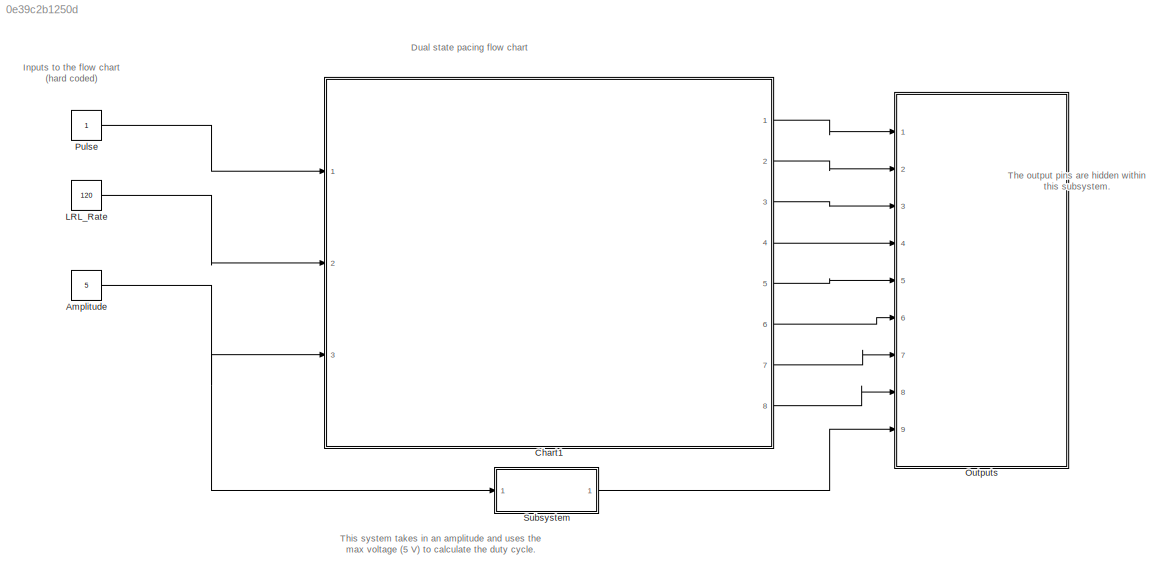
MODEL slx_0e39c2b1250d
KIND model
CONFIG AbsTol = auto
CONFIG EnableMultiTasking = on
CONFIG FixedStep = auto
CONFIG MaxStep = auto
CONFIG MinStep = auto
CONFIG RelTol = 1e-3
CONFIG SampleTimeConstraint = Unconstrained
CONFIG Solver = FixedStepAuto
CONFIG SolverName = FixedStepAuto
CONFIG StartTime = 0.0
CONFIG StopTime = inf
BLOCK [Constant] Amplitude 
  Value = 5
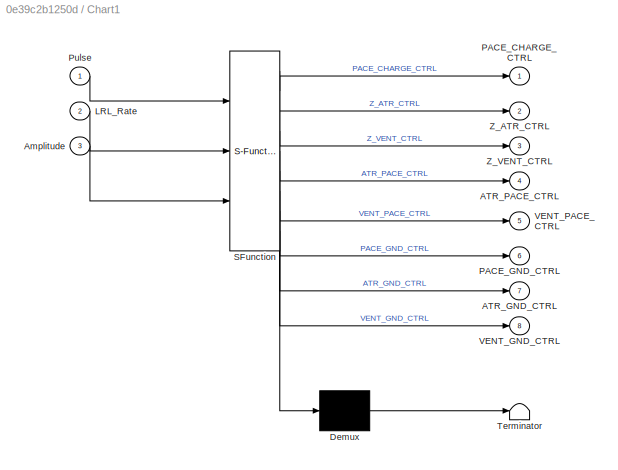
BLOCK [SubSystem] Chart1
  ErrorFcn = Stateflow.Translate.translate
  PermitHierarchicalResolution = ExplicitOnly
  Ports = [3, 8]
  RequestExecContextInheritance = off
  SFBlockType = Chart
  TreatAsAtomicUnit = on
  Variant = off
BLOCK [Demux] Chart1/ Demux 
  Outputs = 1
  Ports = [1, 1]
BLOCK [S-Function] Chart1/ SFunction 
  EnableBusSupport = on
  FunctionName = sf_sfun
  PortCounts = [3 9]
  Ports = [3, 9]
  SFcnIsStateOwnerBlock = off
  SFunctionDeploymentMode = off
  Tag = Stateflow S-Function untitled1 1
BLOCK [Terminator] Chart1/ Terminator 
BLOCK [Outport] Chart1/ATR_GND_CTRL
  IconDisplay = Port number
  Port = 7
BLOCK [Outport] Chart1/ATR_PACE_CTRL
  IconDisplay = Port number
  Port = 4
BLOCK [Inport] Chart1/Amplitude
  IconDisplay = Port number
  Port = 3
BLOCK [Inport] Chart1/LRL_Rate
  IconDisplay = Port number
  Port = 2
BLOCK [Outport] Chart1/PACE_CHARGE_CTRL
  IconDisplay = Port number
BLOCK [Outport] Chart1/PACE_GND_CTRL
  IconDisplay = Port number
  Port = 6
BLOCK [Inport] Chart1/Pulse
  IconDisplay = Port number
BLOCK [Outport] Chart1/VENT_GND_CTRL
  IconDisplay = Port number
  Port = 8
BLOCK [Outport] Chart1/VENT_PACE_CTRL
  IconDisplay = Port number
  Port = 5
BLOCK [Outport] Chart1/Z_ATR_CTRL
  IconDisplay = Port number
  Port = 2
BLOCK [Outport] Chart1/Z_VENT_CTRL
  IconDisplay = Port number
  Port = 3
BLOCK [Constant] LRL_Rate
  Value = 120
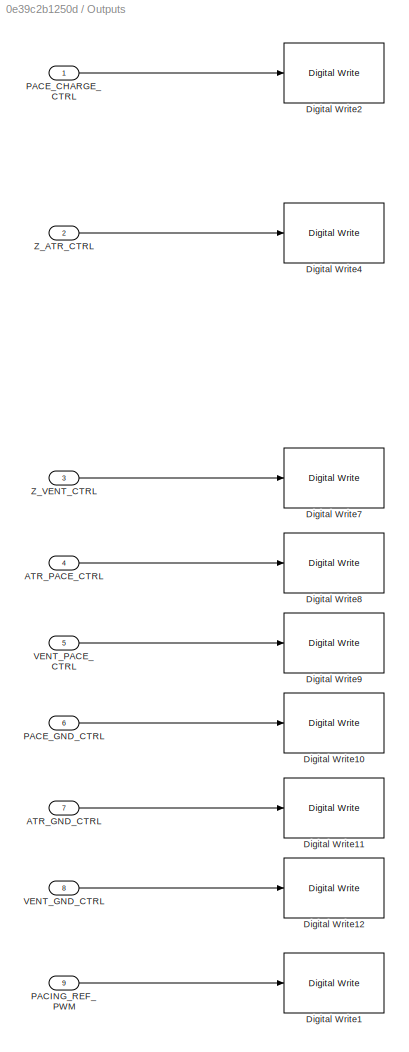
BLOCK [SubSystem] Outputs
  Ports = [9]
  RequestExecContextInheritance = off
  Variant = off
BLOCK [Inport] Outputs/ATR_GND_CTRL
  IconDisplay = Port number
  Port = 7
BLOCK [Inport] Outputs/ATR_PACE_CTRL
  IconDisplay = Port number
  Port = 4
BLOCK [Reference] Outputs/Digital Write1  REF=frdmk64flib/Digital Write
  Ports = [1]
  SourceBlock = frdmk64flib/Digital Write
  SourceProductBaseCode = EC_FRDM_K64F
  SourceProductName = Simulink Coder Support Package for NXP FRDM-K64F Board
  SourceType = freedomk64f.DigitalWrite
BLOCK [Reference] Outputs/Digital Write10  REF=frdmk64flib/Digital Write
  Ports = [1]
  SourceBlock = frdmk64flib/Digital Write
  SourceProductBaseCode = EC_FRDM_K64F
  SourceProductName = Simulink Coder Support Package for NXP FRDM-K64F Board
  SourceType = freedomk64f.DigitalWrite
BLOCK [Reference] Outputs/Digital Write11  REF=frdmk64flib/Digital Write
  Ports = [1]
  SourceBlock = frdmk64flib/Digital Write
  SourceProductBaseCode = EC_FRDM_K64F
  SourceProductName = Simulink Coder Support Package for NXP FRDM-K64F Board
  SourceType = freedomk64f.DigitalWrite
BLOCK [Reference] Outputs/Digital Write12  REF=frdmk64flib/Digital Write
  Ports = [1]
  SourceBlock = frdmk64flib/Digital Write
  SourceProductBaseCode = EC_FRDM_K64F
  SourceProductName = Simulink Coder Support Package for NXP FRDM-K64F Board
  SourceType = freedomk64f.DigitalWrite
BLOCK [Reference] Outputs/Digital Write2  REF=frdmk64flib/Digital Write
  Ports = [1]
  SourceBlock = frdmk64flib/Digital Write
  SourceProductBaseCode = EC_FRDM_K64F
  SourceProductName = Simulink Coder Support Package for NXP FRDM-K64F Board
  SourceType = freedomk64f.DigitalWrite
BLOCK [Reference] Outputs/Digital Write4  REF=frdmk64flib/Digital Write
  Ports = [1]
  SourceBlock = frdmk64flib/Digital Write
  SourceProductBaseCode = EC_FRDM_K64F
  SourceProductName = Simulink Coder Support Package for NXP FRDM-K64F Board
  SourceType = freedomk64f.DigitalWrite
BLOCK [Reference] Outputs/Digital Write7  REF=frdmk64flib/Digital Write
  Ports = [1]
  SourceBlock = frdmk64flib/Digital Write
  SourceProductBaseCode = EC_FRDM_K64F
  SourceProductName = Simulink Coder Support Package for NXP FRDM-K64F Board
  SourceType = freedomk64f.DigitalWrite
BLOCK [Reference] Outputs/Digital Write8  REF=frdmk64flib/Digital Write
  Ports = [1]
  SourceBlock = frdmk64flib/Digital Write
  SourceProductBaseCode = EC_FRDM_K64F
  SourceProductName = Simulink Coder Support Package for NXP FRDM-K64F Board
  SourceType = freedomk64f.DigitalWrite
BLOCK [Reference] Outputs/Digital Write9  REF=frdmk64flib/Digital Write
  Ports = [1]
  SourceBlock = frdmk64flib/Digital Write
  SourceProductBaseCode = EC_FRDM_K64F
  SourceProductName = Simulink Coder Support Package for NXP FRDM-K64F Board
  SourceType = freedomk64f.DigitalWrite
BLOCK [Inport] Outputs/PACE_CHARGE_CTRL
  IconDisplay = Port number
BLOCK [Inport] Outputs/PACE_GND_CTRL
  IconDisplay = Port number
  Port = 6
BLOCK [Inport] Outputs/PACING_REF_PWM
  IconDisplay = Port number
  Port = 9
BLOCK [Inport] Outputs/VENT_GND_CTRL
  IconDisplay = Port number
  Port = 8
BLOCK [Inport] Outputs/VENT_PACE_CTRL
  IconDisplay = Port number
  Port = 5
BLOCK [Inport] Outputs/Z_ATR_CTRL
  IconDisplay = Port number
  Port = 2
BLOCK [Inport] Outputs/Z_VENT_CTRL
  IconDisplay = Port number
  Port = 3
BLOCK [Constant] Pulse
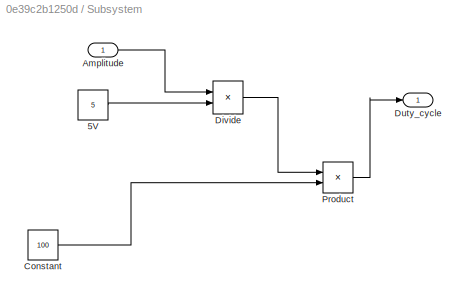
BLOCK [SubSystem] Subsystem
  Ports = [1, 1]
  RequestExecContextInheritance = off
  Variant = off
BLOCK [Constant] Subsystem/5V
  Value = 5
BLOCK [Inport] Subsystem/Amplitude
  IconDisplay = Port number
BLOCK [Constant] Subsystem/Constant
  Value = 100
BLOCK [Product] Subsystem/Divide
  InputSameDT = off
  Inputs = */
  OutDataTypeStr = Inherit: Inherit via internal rule
  Ports = [2, 1]
  RndMeth = Floor
  SaturateOnIntegerOverflow = off
BLOCK [Outport] Subsystem/Duty_cycle
  IconDisplay = Port number
  OutMax = 100
  OutMin = 0
BLOCK [Product] Subsystem/Product
  InputSameDT = off
  OutDataTypeStr = Inherit: Inherit via internal rule
  Ports = [2, 1]
  RndMeth = Floor
  SaturateOnIntegerOverflow = off
ANNOTATION (root): Dual state pacing flow chart
ANNOTATION (root): Inputs to the flow chart (hard coded)
ANNOTATION (root): The output pins are hidden within this subsystem.
ANNOTATION (root): This system takes in an amplitude and uses the max voltage (5 V) to calculate the duty cycle.
NET Amplitude :1 -> Chart1:3, Subsystem:1
LINE Chart1:1 -> Outputs:1
LINE Chart1:2 -> Outputs:2
LINE Chart1:3 -> Outputs:3
LINE Chart1:4 -> Outputs:4
LINE Chart1:5 -> Outputs:5
LINE Chart1:6 -> Outputs:6
LINE Chart1:7 -> Outputs:7
LINE Chart1:8 -> Outputs:8
LINE LRL_Rate:1 -> Chart1:2
LINE Outputs/ATR_GND_CTRL:1 -> Outputs/Digital Write11:1
LINE Outputs/ATR_PACE_CTRL:1 -> Outputs/Digital Write8:1
LINE Outputs/PACE_CHARGE_CTRL:1 -> Outputs/Digital Write2:1
LINE Outputs/PACE_GND_CTRL:1 -> Outputs/Digital Write10:1
LINE Outputs/PACING_REF_PWM:1 -> Outputs/Digital Write1:1
LINE Outputs/VENT_GND_CTRL:1 -> Outputs/Digital Write12:1
LINE Outputs/VENT_PACE_CTRL:1 -> Outputs/Digital Write9:1
LINE Outputs/Z_ATR_CTRL:1 -> Outputs/Digital Write4:1
LINE Outputs/Z_VENT_CTRL:1 -> Outputs/Digital Write7:1
LINE Pulse:1 -> Chart1:1
LINE Subsystem/5V:1 -> Subsystem/Divide:2
LINE Subsystem/Amplitude:1 -> Subsystem/Divide:1
LINE Subsystem/Constant:1 -> Subsystem/Product:2
LINE Subsystem/Divide:1 -> Subsystem/Product:1
LINE Subsystem/Product:1 -> Subsystem/Duty_cycle:1
LINE Subsystem:1 -> Outputs:9
note: NET lines group one-source signal fan-out (src -> all destinations, sorted); 1:1 wires keep LINE
CHART Chart1 states=6 transitions=3
  STATE_LABEL 'CHARGING\nentry:\nATR_PACE_CTRL = false\nVENT_PACE_CTRL =true\nPACE_CHARGE_CTRL = true\nPACE_GND_CTRL = true\nZ_ATR_CTRL = false\nZ_VENT_CTRL = false\nATR_GND_CTRL = false\nVENT_GND_CTRL = false\n'
  STATE_LABEL 'PACING\nentry:\nPACE_CHARGE_CTRL = false\nPACE_GND_CTRL = true\nATR_PACE_CTRL = false\nATR_GND_CTRL = false\nZ_ATR_CTRL = false\nZ_VENT_CTRL = false\nVENT_GND_CTRL = true\nVENT_PACE_CTRL = false'
  STATE_LABEL 'Pace Ready '
  STATE_LABEL 'Recharge Ready'
  STATE_LABEL 'This is the pacing state that discharges\nthe capacitor (C22) into the ventricle and\ncharges the capacitor (C21).'
  STATE_LABEL 'This charging state charges the capacitor\nC22 and discharges the blocking capacitor.'
